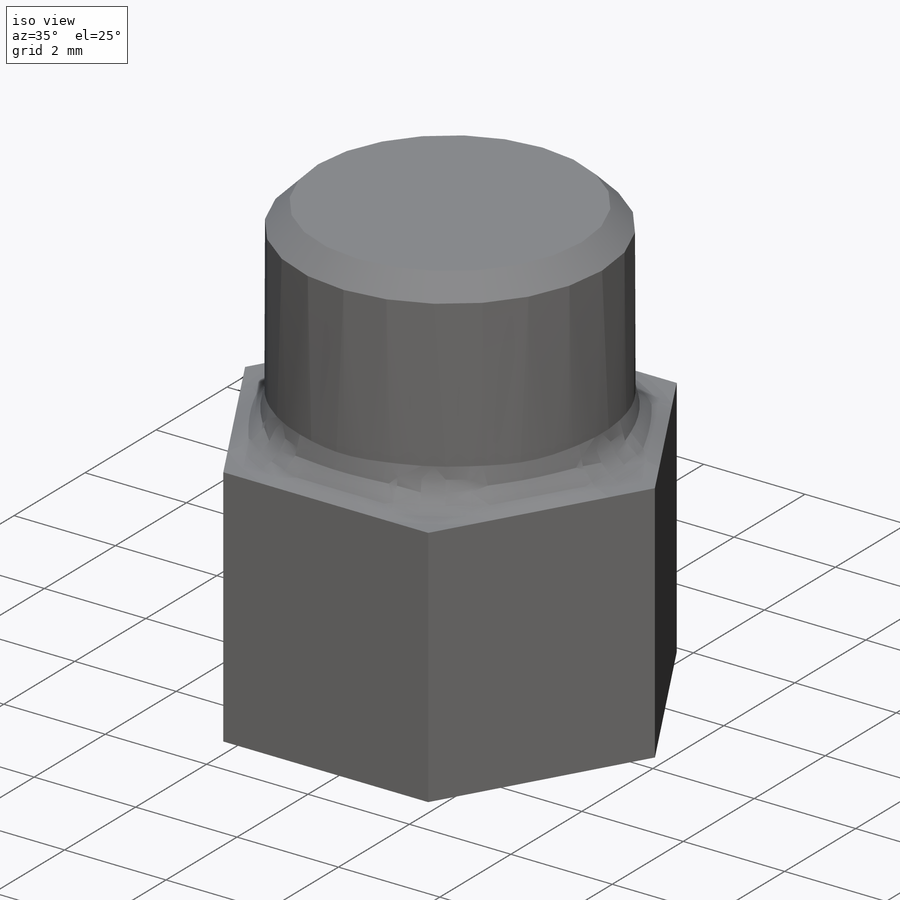
[diagram: iso view]
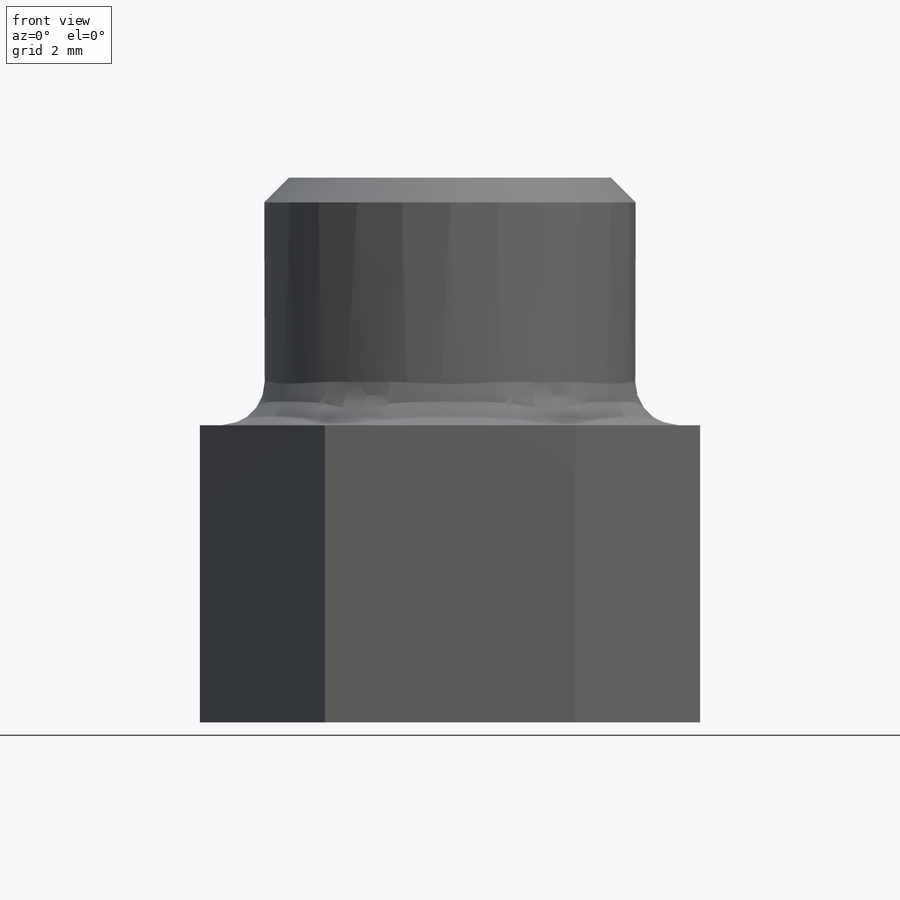
[diagram: front view]
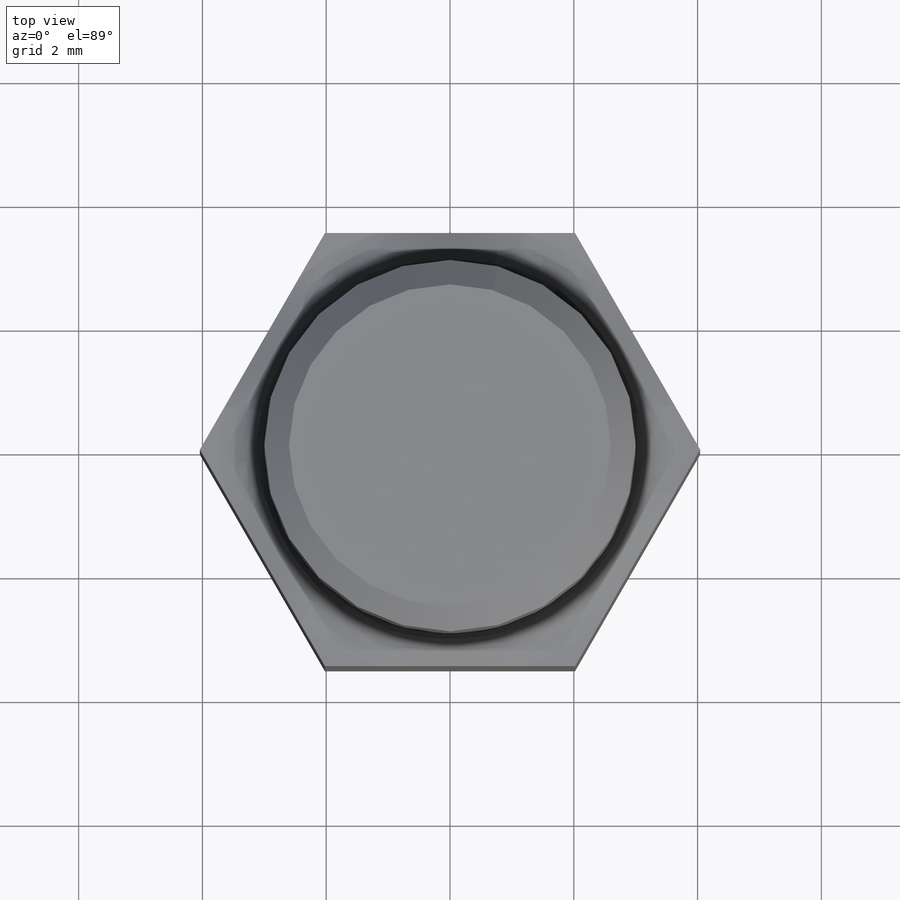
[diagram: top view]
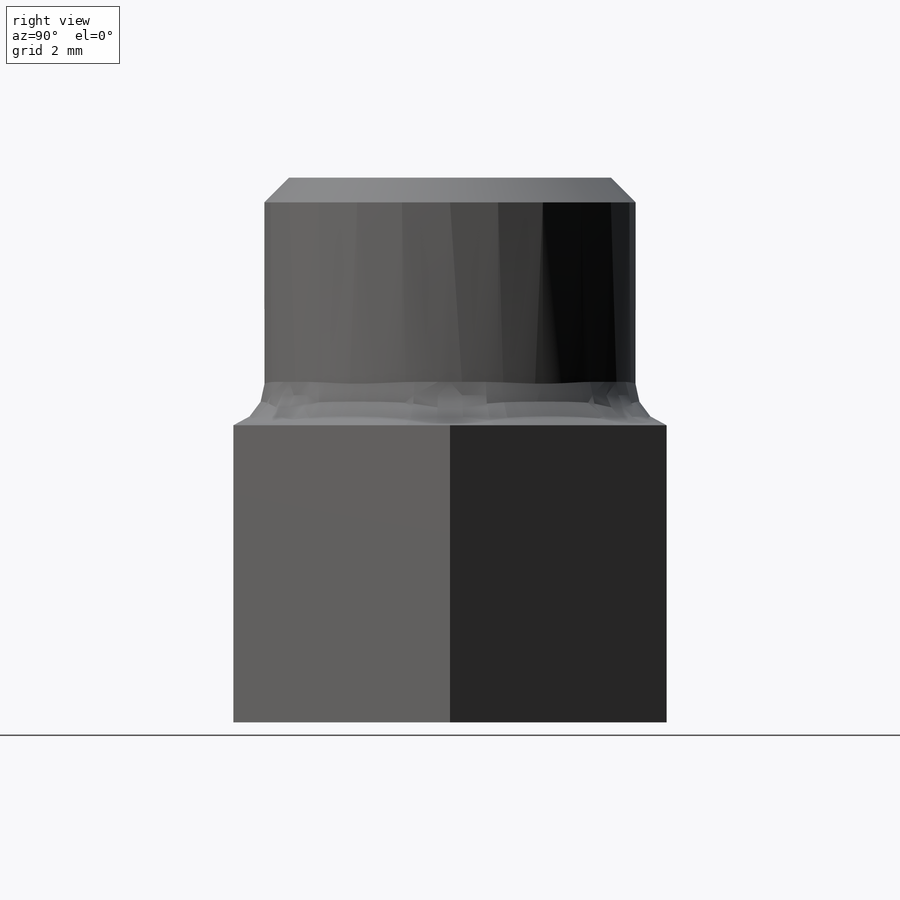
[diagram: right view]
SOLIDWORKS PART (.sldprt)
format: sldprt  version: not decoded by parser v0  size: 270,336 bytes
history: native  units: mm
features: plane x3, sketch x2, extrude x2, material x1, fillet x1, chamfer x1 (+10 scaffold rows collapsed)
feature tree (20):
  scaffold x10  (default folders/planes/origin — collapsed)
  material  "Материал <не указан>"
  plane  "Спереди"
  plane  "Сверху"
  plane  "Справа"
  sketch  "Эскиз1"  dims[D1=7.0mm]
  extrude  "Бобышка-Вытянуть1"  Depth=4.8mm
  sketch  "Эскиз2"  dims[D1=6.0mm]
  extrude  "Бобышка-Вытянуть2"  Depth=4mm
  fillet  "Скругление4"  Radius=0.7mm
  chamfer  "Фаска1"  Distance=0.4mm Angle=45deg
decode coverage: 6 of 6 modeling features carry decoded parameters
note: suppression state not decoded; provenance and decode notes live in map.json
